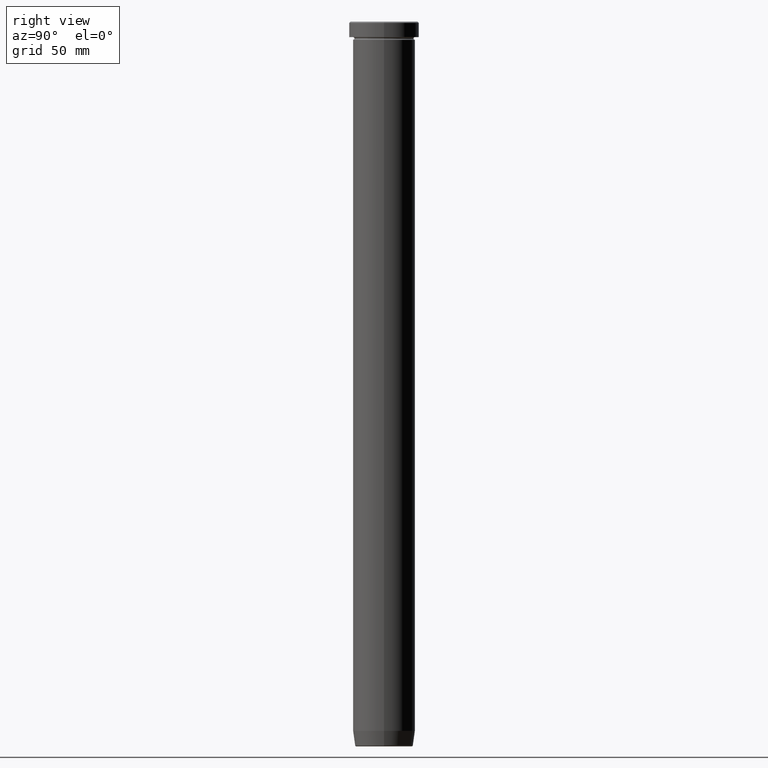
[diagram: clean part render]
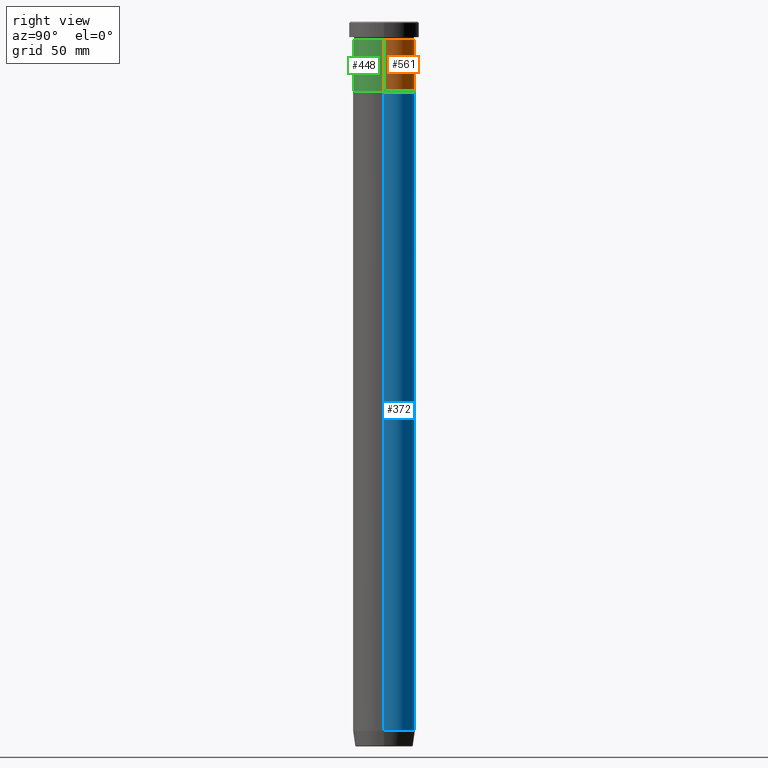
[diagram: same view with three faces highlighted in distinct colors, each labeled with its STEP entity id]
A machine part, right view with three faces highlighted in distinct colors.
Their STEP definitions:

[orange] entity #561 — the highlighted cylindrical surface (edge-blend (fillet) strip) has radius 12 mm, axis along (-0, -0, 1).
#25 = EDGE_LOOP ( 'NONE', ( #547, #443, #522, #500 ) ) ;
#45 = DIRECTION ( 'NONE',  ( -0.000000000000000000, -0.000000000000000000, 1.000000000000000000 ) ) ;
#59 = CARTESIAN_POINT ( 'NONE',  ( -12.00000000000000000, 1.469576158976823947E-15, 0.000000000000000000 ) ) ;
#99 = DIRECTION ( 'NONE',  ( 1.000000000000000000, 0.000000000000000000, 0.000000000000000000 ) ) ;
#101 = FACE_OUTER_BOUND ( 'NONE', #25, .T. ) ;
#110 = VERTEX_POINT ( 'NONE', #313 ) ;
#117 = AXIS2_PLACEMENT_3D ( 'NONE', #463, #587, #140 ) ;
#131 = CARTESIAN_POINT ( 'NONE',  ( 12.00000000000000000, 0.000000000000000000, -7.000000000000000000 ) ) ;
#138 = CIRCLE ( 'NONE', #299, 12.00000000000000000 ) ;
#140 = DIRECTION ( 'NONE',  ( 1.000000000000000000, 0.000000000000000000, 0.000000000000000000 ) ) ;
#152 = DIRECTION ( 'NONE',  ( 1.000000000000000000, 0.000000000000000000, 0.000000000000000000 ) ) ;
#155 = DIRECTION ( 'NONE',  ( -0.000000000000000000, -0.000000000000000000, 1.000000000000000000 ) ) ;
#197 = CARTESIAN_POINT ( 'NONE',  ( 0.000000000000000000, 0.000000000000000000, 0.000000000000000000 ) ) ;
#200 = CARTESIAN_POINT ( 'NONE',  ( 12.00000000000000000, 0.000000000000000000, 0.000000000000000000 ) ) ;
#203 = AXIS2_PLACEMENT_3D ( 'NONE', #197, #562, #99 ) ;
#206 = LINE ( 'NONE', #200, #232 ) ;
#231 = EDGE_CURVE ( 'NONE', #110, #266, #529, .T. ) ;
#232 = VECTOR ( 'NONE', #45, 1000.000000000000000 ) ;
#252 = CARTESIAN_POINT ( 'NONE',  ( -12.00000000000000000, 1.469576158976823947E-15, -7.000000000000000000 ) ) ;
#266 = VERTEX_POINT ( 'NONE', #252 ) ;
#298 = VECTOR ( 'NONE', #155, 1000.000000000000000 ) ;
#299 = AXIS2_PLACEMENT_3D ( 'NONE', #572, #340, #152 ) ;
#305 = VERTEX_POINT ( 'NONE', #324 ) ;
#313 = CARTESIAN_POINT ( 'NONE',  ( -12.00000000000000000, 1.469576158976823947E-15, -27.00000000000000000 ) ) ;
#316 = EDGE_CURVE ( 'NONE', #359, #266, #550, .T. ) ;
#324 = CARTESIAN_POINT ( 'NONE',  ( 12.00000000000000000, 0.000000000000000000, -27.00000000000000000 ) ) ;
#340 = DIRECTION ( 'NONE',  ( -0.000000000000000000, -0.000000000000000000, 1.000000000000000000 ) ) ;
#359 = VERTEX_POINT ( 'NONE', #131 ) ;
#426 = CYLINDRICAL_SURFACE ( 'NONE', #203, 12.00000000000000000 ) ;
#443 = ORIENTED_EDGE ( 'NONE', *, *, #231, .T. ) ;
#455 = EDGE_CURVE ( 'NONE', #305, #110, #138, .T. ) ;
#463 = CARTESIAN_POINT ( 'NONE',  ( 0.000000000000000000, 0.000000000000000000, -7.000000000000000000 ) ) ;
#500 = ORIENTED_EDGE ( 'NONE', *, *, #546, .F. ) ;
#522 = ORIENTED_EDGE ( 'NONE', *, *, #316, .F. ) ;
#529 = LINE ( 'NONE', #59, #298 ) ;
#546 = EDGE_CURVE ( 'NONE', #305, #359, #206, .T. ) ;
#547 = ORIENTED_EDGE ( 'NONE', *, *, #455, .T. ) ;
#550 = CIRCLE ( 'NONE', #117, 12.00000000000000000 ) ;
#561 = ADVANCED_FACE ( 'NONE', ( #101 ), #426, .T. ) ;
#562 = DIRECTION ( 'NONE',  ( -0.000000000000000000, -0.000000000000000000, 1.000000000000000000 ) ) ;
#572 = CARTESIAN_POINT ( 'NONE',  ( 0.000000000000000000, 0.000000000000000000, -27.00000000000000000 ) ) ;
#587 = DIRECTION ( 'NONE',  ( -0.000000000000000000, -0.000000000000000000, 1.000000000000000000 ) ) ;

[blue] entity #372 — the highlighted cylindrical surface (edge-blend (fillet) strip) has radius 12 mm, axis along (-0, -0, 1).
#17 = LINE ( 'NONE', #204, #136 ) ;
#24 = CARTESIAN_POINT ( 'NONE',  ( 12.00000000000000000, 0.000000000000000000, 0.000000000000000000 ) ) ;
#31 = VECTOR ( 'NONE', #158, 1000.000000000000000 ) ;
#33 = DIRECTION ( 'NONE',  ( -0.000000000000000000, -0.000000000000000000, 1.000000000000000000 ) ) ;
#49 = ORIENTED_EDGE ( 'NONE', *, *, #585, .F. ) ;
#65 = VERTEX_POINT ( 'NONE', #190 ) ;
#76 = CIRCLE ( 'NONE', #422, 12.00000000000000000 ) ;
#136 = VECTOR ( 'NONE', #267, 1000.000000000000000 ) ;
#147 = EDGE_CURVE ( 'NONE', #479, #509, #17, .T. ) ;
#157 = EDGE_CURVE ( 'NONE', #65, #479, #476, .T. ) ;
#158 = DIRECTION ( 'NONE',  ( -0.000000000000000000, -0.000000000000000000, 1.000000000000000000 ) ) ;
#171 = DIRECTION ( 'NONE',  ( 1.000000000000000000, 0.000000000000000000, 0.000000000000000000 ) ) ;
#190 = CARTESIAN_POINT ( 'NONE',  ( 12.00000000000000000, 0.000000000000000000, -274.0000000000000000 ) ) ;
#191 = DIRECTION ( 'NONE',  ( -0.000000000000000000, -0.000000000000000000, 1.000000000000000000 ) ) ;
#204 = CARTESIAN_POINT ( 'NONE',  ( -12.00000000000000000, 1.469576158976823947E-15, 0.000000000000000000 ) ) ;
#208 = ORIENTED_EDGE ( 'NONE', *, *, #348, .F. ) ;
#226 = VERTEX_POINT ( 'NONE', #295 ) ;
#233 = DIRECTION ( 'NONE',  ( 1.000000000000000000, 0.000000000000000000, 0.000000000000000000 ) ) ;
#236 = CARTESIAN_POINT ( 'NONE',  ( 0.000000000000000000, 0.000000000000000000, 0.000000000000000000 ) ) ;
#261 = ORIENTED_EDGE ( 'NONE', *, *, #147, .T. ) ;
#263 = CARTESIAN_POINT ( 'NONE',  ( 0.000000000000000000, 0.000000000000000000, -274.0000000000000000 ) ) ;
#267 = DIRECTION ( 'NONE',  ( -0.000000000000000000, -0.000000000000000000, 1.000000000000000000 ) ) ;
#273 = CYLINDRICAL_SURFACE ( 'NONE', #575, 12.00000000000000000 ) ;
#295 = CARTESIAN_POINT ( 'NONE',  ( 12.00000000000000000, 0.000000000000000000, -27.00000000000000000 ) ) ;
#307 = ORIENTED_EDGE ( 'NONE', *, *, #157, .T. ) ;
#311 = AXIS2_PLACEMENT_3D ( 'NONE', #263, #493, #171 ) ;
#348 = EDGE_CURVE ( 'NONE', #226, #509, #76, .T. ) ;
#372 = ADVANCED_FACE ( 'NONE', ( #548 ), #273, .T. ) ;
#422 = AXIS2_PLACEMENT_3D ( 'NONE', #498, #191, #588 ) ;
#476 = CIRCLE ( 'NONE', #311, 12.00000000000000000 ) ;
#479 = VERTEX_POINT ( 'NONE', #520 ) ;
#482 = EDGE_LOOP ( 'NONE', ( #307, #261, #208, #49 ) ) ;
#483 = LINE ( 'NONE', #24, #31 ) ;
#493 = DIRECTION ( 'NONE',  ( -0.000000000000000000, -0.000000000000000000, 1.000000000000000000 ) ) ;
#498 = CARTESIAN_POINT ( 'NONE',  ( 0.000000000000000000, 0.000000000000000000, -27.00000000000000000 ) ) ;
#509 = VERTEX_POINT ( 'NONE', #511 ) ;
#511 = CARTESIAN_POINT ( 'NONE',  ( -12.00000000000000000, 1.469576158976823947E-15, -27.00000000000000000 ) ) ;
#520 = CARTESIAN_POINT ( 'NONE',  ( -12.00000000000000000, 1.469576158976823947E-15, -274.0000000000000000 ) ) ;
#548 = FACE_OUTER_BOUND ( 'NONE', #482, .T. ) ;
#575 = AXIS2_PLACEMENT_3D ( 'NONE', #236, #33, #233 ) ;
#585 = EDGE_CURVE ( 'NONE', #65, #226, #483, .T. ) ;
#588 = DIRECTION ( 'NONE',  ( 1.000000000000000000, 0.000000000000000000, 0.000000000000000000 ) ) ;

[green] entity #448 — the highlighted cylindrical surface (edge-blend (fillet) strip) has radius 12 mm, axis along (-0, -0, 1).
#45 = DIRECTION ( 'NONE',  ( -0.000000000000000000, -0.000000000000000000, 1.000000000000000000 ) ) ;
#59 = CARTESIAN_POINT ( 'NONE',  ( -12.00000000000000000, 1.469576158976823947E-15, 0.000000000000000000 ) ) ;
#81 = EDGE_CURVE ( 'NONE', #110, #305, #182, .T. ) ;
#83 = DIRECTION ( 'NONE',  ( 1.000000000000000000, 0.000000000000000000, 0.000000000000000000 ) ) ;
#91 = ORIENTED_EDGE ( 'NONE', *, *, #546, .T. ) ;
#110 = VERTEX_POINT ( 'NONE', #313 ) ;
#131 = CARTESIAN_POINT ( 'NONE',  ( 12.00000000000000000, 0.000000000000000000, -7.000000000000000000 ) ) ;
#135 = CARTESIAN_POINT ( 'NONE',  ( 0.000000000000000000, 0.000000000000000000, -7.000000000000000000 ) ) ;
#142 = DIRECTION ( 'NONE',  ( 1.000000000000000000, 0.000000000000000000, 0.000000000000000000 ) ) ;
#153 = DIRECTION ( 'NONE',  ( -0.000000000000000000, -0.000000000000000000, 1.000000000000000000 ) ) ;
#155 = DIRECTION ( 'NONE',  ( -0.000000000000000000, -0.000000000000000000, 1.000000000000000000 ) ) ;
#178 = EDGE_CURVE ( 'NONE', #266, #359, #288, .T. ) ;
#182 = CIRCLE ( 'NONE', #410, 12.00000000000000000 ) ;
#194 = CARTESIAN_POINT ( 'NONE',  ( 0.000000000000000000, 0.000000000000000000, 0.000000000000000000 ) ) ;
#200 = CARTESIAN_POINT ( 'NONE',  ( 12.00000000000000000, 0.000000000000000000, 0.000000000000000000 ) ) ;
#206 = LINE ( 'NONE', #200, #232 ) ;
#231 = EDGE_CURVE ( 'NONE', #110, #266, #529, .T. ) ;
#232 = VECTOR ( 'NONE', #45, 1000.000000000000000 ) ;
#234 = ORIENTED_EDGE ( 'NONE', *, *, #81, .T. ) ;
#238 = CARTESIAN_POINT ( 'NONE',  ( 0.000000000000000000, 0.000000000000000000, -27.00000000000000000 ) ) ;
#252 = CARTESIAN_POINT ( 'NONE',  ( -12.00000000000000000, 1.469576158976823947E-15, -7.000000000000000000 ) ) ;
#266 = VERTEX_POINT ( 'NONE', #252 ) ;
#272 = DIRECTION ( 'NONE',  ( -0.000000000000000000, -0.000000000000000000, 1.000000000000000000 ) ) ;
#288 = CIRCLE ( 'NONE', #337, 12.00000000000000000 ) ;
#298 = VECTOR ( 'NONE', #155, 1000.000000000000000 ) ;
#305 = VERTEX_POINT ( 'NONE', #324 ) ;
#312 = AXIS2_PLACEMENT_3D ( 'NONE', #194, #470, #142 ) ;
#313 = CARTESIAN_POINT ( 'NONE',  ( -12.00000000000000000, 1.469576158976823947E-15, -27.00000000000000000 ) ) ;
#324 = CARTESIAN_POINT ( 'NONE',  ( 12.00000000000000000, 0.000000000000000000, -27.00000000000000000 ) ) ;
#337 = AXIS2_PLACEMENT_3D ( 'NONE', #135, #272, #83 ) ;
#342 = CYLINDRICAL_SURFACE ( 'NONE', #312, 12.00000000000000000 ) ;
#343 = DIRECTION ( 'NONE',  ( 1.000000000000000000, 0.000000000000000000, 0.000000000000000000 ) ) ;
#358 = EDGE_LOOP ( 'NONE', ( #412, #234, #91, #439 ) ) ;
#359 = VERTEX_POINT ( 'NONE', #131 ) ;
#376 = FACE_OUTER_BOUND ( 'NONE', #358, .T. ) ;
#410 = AXIS2_PLACEMENT_3D ( 'NONE', #238, #153, #343 ) ;
#412 = ORIENTED_EDGE ( 'NONE', *, *, #231, .F. ) ;
#439 = ORIENTED_EDGE ( 'NONE', *, *, #178, .F. ) ;
#448 = ADVANCED_FACE ( 'NONE', ( #376 ), #342, .T. ) ;
#470 = DIRECTION ( 'NONE',  ( -0.000000000000000000, -0.000000000000000000, 1.000000000000000000 ) ) ;
#529 = LINE ( 'NONE', #59, #298 ) ;
#546 = EDGE_CURVE ( 'NONE', #305, #359, #206, .T. ) ;